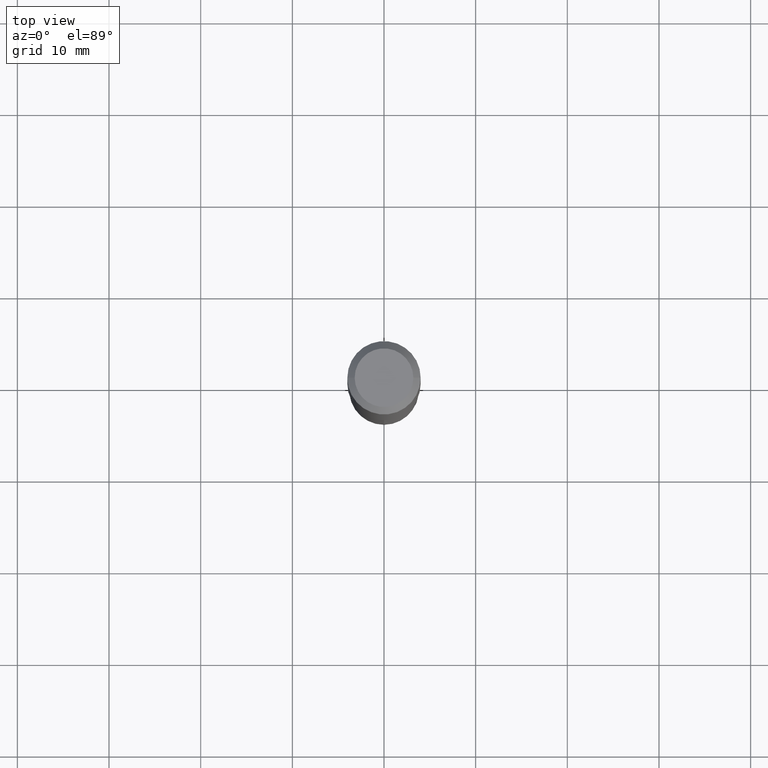
[diagram: clean part render]
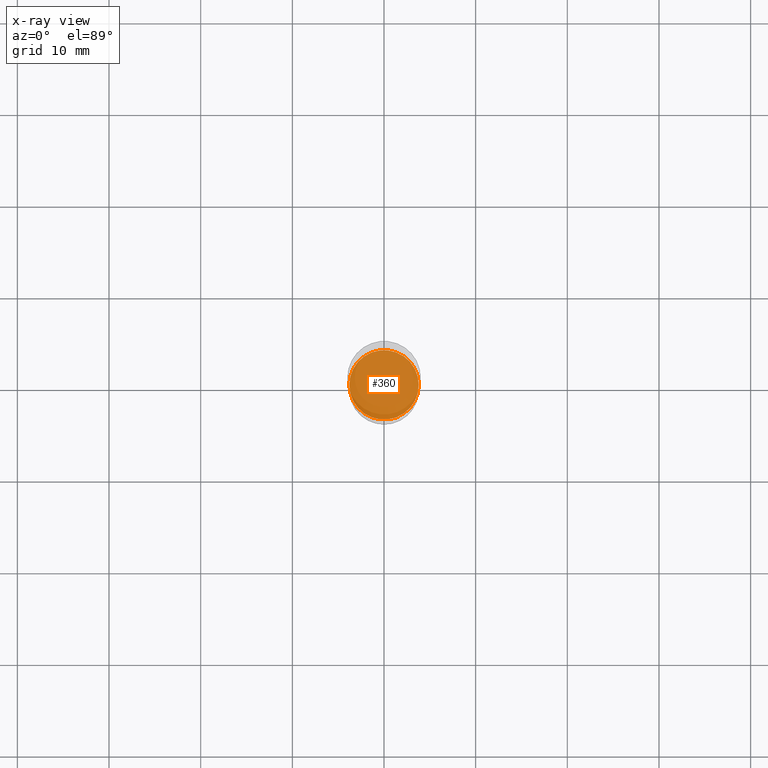
[diagram: x-ray — body ghosted, one internal face saturated and labeled with its STEP entity id]
A machine part, top view, then the same camera in x-ray: the body is ghosted and one INTERNAL B-rep face — a face not visible from any outside direction — is saturated and labeled: STEP entity #360.
In plain terms, the highlighted planar face has unit normal (-0, 0, 1).
Its self-contained STEP definition (entity closure, byte-faithful):
#14 = ORIENTED_EDGE ( 'NONE', *, *, #286, .F. ) ;
#15 = DIRECTION ( 'NONE',  ( -2.438088387897960049E-29, 3.491481338843145188E-15, 1.000000000000000000 ) ) ;
#32 = CIRCLE ( 'NONE', #368, 0.1491000000000000103 ) ;
#50 = DIRECTION ( 'NONE',  ( 1.000000000000000000, -6.982962677686265133E-15, 0.000000000000000000 ) ) ;
#61 = DIRECTION ( 'NONE',  ( 1.000000000000000000, -6.982962677686265133E-15, 0.000000000000000000 ) ) ;
#79 = FACE_OUTER_BOUND ( 'NONE', #195, .T. ) ;
#104 = VERTEX_POINT ( 'NONE', #396 ) ;
#111 = ORIENTED_EDGE ( 'NONE', *, *, #449, .F. ) ;
#120 = CARTESIAN_POINT ( 'NONE',  ( 4.390105600863556886E-29, -6.267907299491213327E-15, -1.795199999999999685 ) ) ;
#189 = DIRECTION ( 'NONE',  ( 1.000000000000000000, -6.982962677686265922E-15, 4.876176775795935793E-29 ) ) ;
#193 = CARTESIAN_POINT ( 'NONE',  ( -0.1491000000000000103, -5.205838853298793464E-15, -1.795199999999999685 ) ) ;
#195 = EDGE_LOOP ( 'NONE', ( #111, #14 ) ) ;
#267 = DIRECTION ( 'NONE',  ( -2.445468806185136597E-29, 3.491481338843145583E-15, 1.000000000000000000 ) ) ;
#286 = EDGE_CURVE ( 'NONE', #406, #104, #32, .T. ) ;
#352 = CARTESIAN_POINT ( 'NONE',  ( 4.390105600863556886E-29, -6.267907299491213327E-15, -1.795199999999999685 ) ) ;
#360 = ADVANCED_FACE ( 'NONE', ( #79 ), #376, .F. ) ;
#362 = CIRCLE ( 'NONE', #453, 0.1491000000000000103 ) ;
#368 = AXIS2_PLACEMENT_3D ( 'NONE', #352, #267, #61 ) ;
#376 = PLANE ( 'NONE',  #401 ) ;
#385 = DIRECTION ( 'NONE',  ( -2.445468806185136597E-29, 3.491481338843145583E-15, 1.000000000000000000 ) ) ;
#396 = CARTESIAN_POINT ( 'NONE',  ( 0.1491000000000000103, -7.309067034734236709E-15, -1.795199999999999685 ) ) ;
#401 = AXIS2_PLACEMENT_3D ( 'NONE', #423, #15, #189 ) ;
#406 = VERTEX_POINT ( 'NONE', #193 ) ;
#423 = CARTESIAN_POINT ( 'NONE',  ( 6.686949327300660051E-29, -2.978696355006919031E-15, -1.795200000000000129 ) ) ;
#449 = EDGE_CURVE ( 'NONE', #104, #406, #362, .T. ) ;
#453 = AXIS2_PLACEMENT_3D ( 'NONE', #120, #385, #50 ) ;